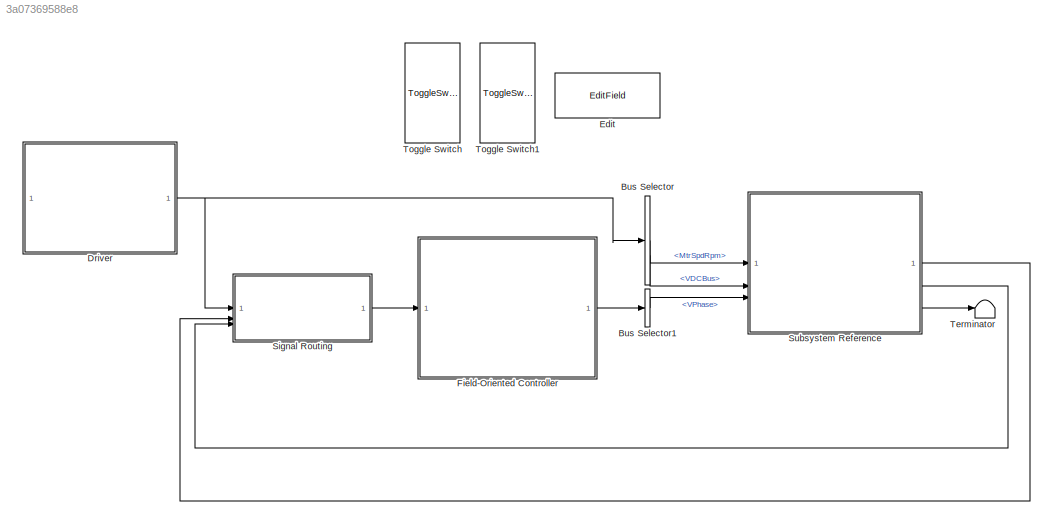
MODEL slx_3a07369588e8
KIND model
CONFIG AbsTol = auto
CONFIG EnableMultiTasking = off
CONFIG FixedStep = 1e-3
CONFIG MaxStep = auto
CONFIG MinStep = auto
CONFIG RelTol = 1e-3
CONFIG SampleTimeConstraint = Unconstrained
CONFIG SolverName = FixedStepDiscrete
CONFIG StartTime = 0.0
CONFIG StopTime = Inf
BLOCK [BusSelector] Bus Selector
  OutputSignals = MtrSpdRpm,VDCBus
BLOCK [BusSelector] Bus Selector1
  OutputSignals = VPhase
BLOCK [SubSystem] Driver
  PermitHierarchicalResolution = None
  ReferencedSubsystem = Driver
BLOCK [EditField] Edit
  Alignment = Center
  ShowInitialText = on
BLOCK [SubSystem] Field-Oriented Controller
  PermitHierarchicalResolution = None
  ReferencedSubsystem = FOC
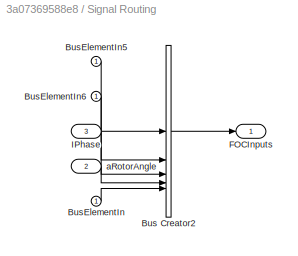
BLOCK [SubSystem] Signal Routing
BLOCK [BusCreator] Signal Routing/Bus Creator2
  DisplayOption = bar
  InheritFromInputs = off
  Inputs = 5
  OutDataTypeStr = Bus: FOCInputs_BUS
BLOCK [Inport] Signal Routing/BusElementIn
BLOCK [Inport] Signal Routing/BusElementIn5
BLOCK [Inport] Signal Routing/BusElementIn6
BLOCK [Outport] Signal Routing/FOCInputs
BLOCK [Inport] Signal Routing/IPhase
  Port = 3
BLOCK [Inport] Signal Routing/aRotorAngle
  Port = 2
BLOCK [SubSystem] Subsystem Reference
  ReferencedSubsystem = InverterMotor
BLOCK [Terminator] Terminator
BLOCK [ToggleSwitchBlock] Toggle Switch
BLOCK [ToggleSwitchBlock] Toggle Switch1
LINE Bus Selector1:1 -> Subsystem Reference:3
LINE Bus Selector:1 -> Subsystem Reference:1
LINE Bus Selector:2 -> Subsystem Reference:2
NET Driver:1 -> Bus Selector:1, Signal Routing:1
LINE Field-Oriented Controller:1 -> Bus Selector1:1
LINE Signal Routing/Bus Creator2:1 -> Signal Routing/FOCInputs:1
LINE Signal Routing/BusElementIn5:1 -> Signal Routing/Bus Creator2:1
LINE Signal Routing/BusElementIn6:1 -> Signal Routing/Bus Creator2:2
LINE Signal Routing/BusElementIn:1 -> Signal Routing/Bus Creator2:5
LINE Signal Routing/IPhase:1 -> Signal Routing/Bus Creator2:3
LINE Signal Routing/aRotorAngle:1 -> Signal Routing/Bus Creator2:4
LINE Signal Routing:1 -> Field-Oriented Controller:1
LINE Subsystem Reference:1 -> Signal Routing:2
LINE Subsystem Reference:2 -> Signal Routing:3
LINE Subsystem Reference:3 -> Terminator:1
note: NET lines group one-source signal fan-out (src -> all destinations, sorted); 1:1 wires keep LINE
